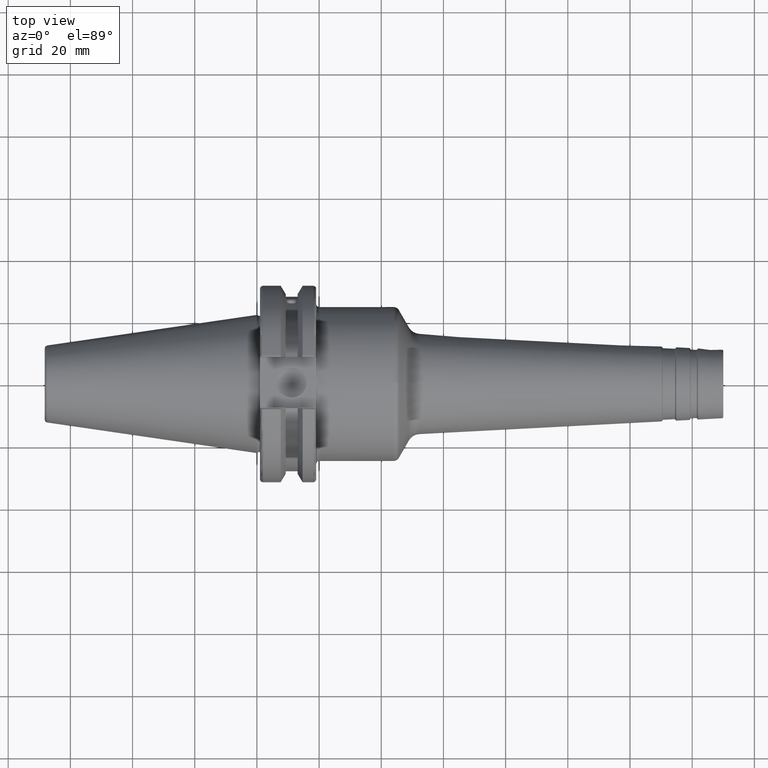
[diagram: clean part render]
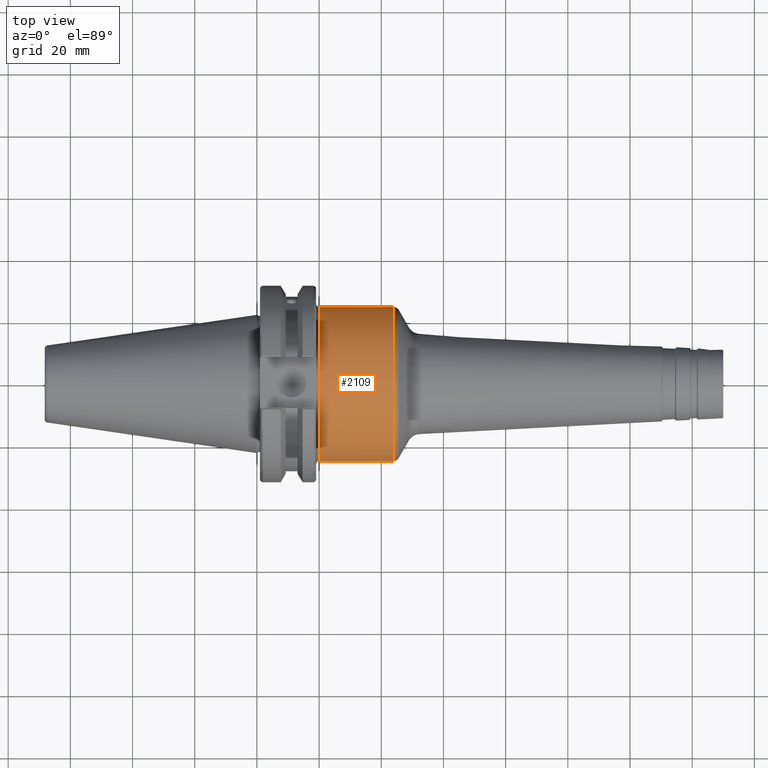
[diagram: same view with one face highlighted and labeled with its STEP entity id]
A machine part, top view. The second image highlights one B-rep face of the part: STEP entity #2109.
In plain terms, the highlighted cylindrical surface (bore or boss wall) has radius 24.75 mm, axis along (1, 0, 0).
Its self-contained STEP definition (entity closure, byte-faithful):
#51=CYLINDRICAL_SURFACE('',#2309,24.75);
#85=B_SPLINE_CURVE_WITH_KNOTS('',3,(#3436,#3437,#3438,#3439,#3440,#3441,
#3442,#3443,#3444,#3445,#3446,#3447,#3448,#3449,#3450,#3451,#3452,#3453),
 .UNSPECIFIED.,.F.,.F.,(4,2,2,2,2,2,2,2,4),(-2.48845986202559,-2.17733241913027,
-1.86620497623495,-1.55521745362387,-1.24422993101279,-0.933242408401713,
-0.622254885790634,-0.311127442895317,0.),.UNSPECIFIED.);
#180=LINE('',#3435,#275);
#275=VECTOR('',#2726,24.75);
#403=FACE_OUTER_BOUND('',#512,.T.);
#512=EDGE_LOOP('',(#1539,#1540,#1541,#1542,#1543,#1544,#1545,#1546));
#681=CIRCLE('',#2304,24.75);
#682=CIRCLE('',#2305,24.75);
#685=CIRCLE('',#2310,24.75);
#686=CIRCLE('',#2311,24.75);
#687=CIRCLE('',#2312,24.75);
#852=VERTEX_POINT('',#3394);
#853=VERTEX_POINT('',#3405);
#854=VERTEX_POINT('',#3407);
#859=VERTEX_POINT('',#3430);
#860=VERTEX_POINT('',#3431);
#861=VERTEX_POINT('',#3433);
#1114=EDGE_CURVE('',#852,#853,#681,.T.);
#1115=EDGE_CURVE('',#853,#854,#682,.T.);
#1122=EDGE_CURVE('',#859,#860,#685,.T.);
#1123=EDGE_CURVE('',#861,#859,#686,.T.);
#1124=EDGE_CURVE('',#861,#853,#180,.T.);
#1125=EDGE_CURVE('',#852,#854,#85,.T.);
#1126=EDGE_CURVE('',#860,#861,#687,.T.);
#1539=ORIENTED_EDGE('',*,*,#1122,.F.);
#1540=ORIENTED_EDGE('',*,*,#1123,.F.);
#1541=ORIENTED_EDGE('',*,*,#1124,.T.);
#1542=ORIENTED_EDGE('',*,*,#1114,.F.);
#1543=ORIENTED_EDGE('',*,*,#1125,.T.);
#1544=ORIENTED_EDGE('',*,*,#1115,.F.);
#1545=ORIENTED_EDGE('',*,*,#1124,.F.);
#1546=ORIENTED_EDGE('',*,*,#1126,.F.);
#2109=ADVANCED_FACE('',(#403),#51,.T.);
#2304=AXIS2_PLACEMENT_3D('',#3406,#2707,#2708);
#2305=AXIS2_PLACEMENT_3D('',#3408,#2709,#2710);
#2309=AXIS2_PLACEMENT_3D('',#3429,#2720,#2721);
#2310=AXIS2_PLACEMENT_3D('',#3432,#2722,#2723);
#2311=AXIS2_PLACEMENT_3D('',#3434,#2724,#2725);
#2312=AXIS2_PLACEMENT_3D('',#3454,#2727,#2728);
#2707=DIRECTION('center_axis',(-1.,0.,0.));
#2708=DIRECTION('ref_axis',(0.,6.12323399573677E-17,1.));
#2709=DIRECTION('center_axis',(-1.,0.,0.));
#2710=DIRECTION('ref_axis',(0.,6.12323399573677E-17,1.));
#2720=DIRECTION('center_axis',(1.,0.,0.));
#2721=DIRECTION('ref_axis',(0.,1.,0.));
#2722=DIRECTION('center_axis',(1.,0.,0.));
#2723=DIRECTION('ref_axis',(0.,-1.,1.83697019872103E-16));
#2724=DIRECTION('center_axis',(1.,0.,0.));
#2725=DIRECTION('ref_axis',(0.,-1.,1.83697019872103E-16));
#2726=DIRECTION('',(-1.,0.,0.));
#2727=DIRECTION('center_axis',(1.,0.,0.));
#2728=DIRECTION('ref_axis',(0.,-1.,1.83697019872103E-16));
#3394=CARTESIAN_POINT('',(20.05,-8.19,-23.3556502799644));
#3405=CARTESIAN_POINT('',(20.05,-24.75,-3.0310008278897E-15));
#3406=CARTESIAN_POINT('Origin',(20.05,0.,0.));
#3407=CARTESIAN_POINT('',(20.05,8.19,-23.3556502799644));
#3408=CARTESIAN_POINT('Origin',(20.05,0.,0.));
#3429=CARTESIAN_POINT('Origin',(32.068599173156,0.,0.));
#3430=CARTESIAN_POINT('',(43.9324978079328,24.75,-1.51550041394485E-15));
#3431=CARTESIAN_POINT('',(43.9324978079328,-3.0310008278897E-15,24.75));
#3432=CARTESIAN_POINT('Origin',(43.9324978079328,0.,0.));
#3433=CARTESIAN_POINT('',(43.9324978079328,-24.75,-3.0310008278897E-15));
#3434=CARTESIAN_POINT('Origin',(43.9324978079328,0.,0.));
#3435=CARTESIAN_POINT('',(32.068599173156,-24.75,-3.0310008278897E-15));
#3436=CARTESIAN_POINT('Ctrl Pts',(20.05,-8.19,-23.3556502799644));
#3437=CARTESIAN_POINT('Ctrl Pts',(21.0870914763177,-8.19,-23.3556502799644));
#3438=CARTESIAN_POINT('Ctrl Pts',(22.1874172494719,-7.98112852617489,-23.4319820145953));
#3439=CARTESIAN_POINT('Ctrl Pts',(24.2026226557735,-7.14301766428651,-23.7009173446597));
#3440=CARTESIAN_POINT('Ctrl Pts',(25.1182638848105,-6.51414519102515,-23.8889373554493));
#3441=CARTESIAN_POINT('Ctrl Pts',(26.563820070037,-5.06858900579863,-24.2368381566145));
#3442=CARTESIAN_POINT('Ctrl Pts',(27.1929429534371,-4.15281808103606,-24.420258379043));
#3443=CARTESIAN_POINT('Ctrl Pts',(28.0312404144778,-2.13713243178097,-24.6784841969773));
#3444=CARTESIAN_POINT('Ctrl Pts',(28.24,-1.03662507537027,-24.75));
#3445=CARTESIAN_POINT('Ctrl Pts',(28.24,1.03662507537027,-24.75));
#3446=CARTESIAN_POINT('Ctrl Pts',(28.0312404144778,2.13713243178098,-24.6784841969773));
#3447=CARTESIAN_POINT('Ctrl Pts',(27.1929429534371,4.15281808103607,-24.420258379043));
#3448=CARTESIAN_POINT('Ctrl Pts',(26.563820070037,5.06858900579863,-24.2368381566145));
#3449=CARTESIAN_POINT('Ctrl Pts',(25.1182638848105,6.51414519102516,-23.8889373554493));
#3450=CARTESIAN_POINT('Ctrl Pts',(24.2026226557734,7.14301766428652,-23.7009173446597));
#3451=CARTESIAN_POINT('Ctrl Pts',(22.1874172494719,7.98112852617489,-23.4319820145953));
#3452=CARTESIAN_POINT('Ctrl Pts',(21.0870914763177,8.19,-23.3556502799644));
#3453=CARTESIAN_POINT('Ctrl Pts',(20.05,8.19,-23.3556502799644));
#3454=CARTESIAN_POINT('Origin',(43.9324978079328,0.,0.));